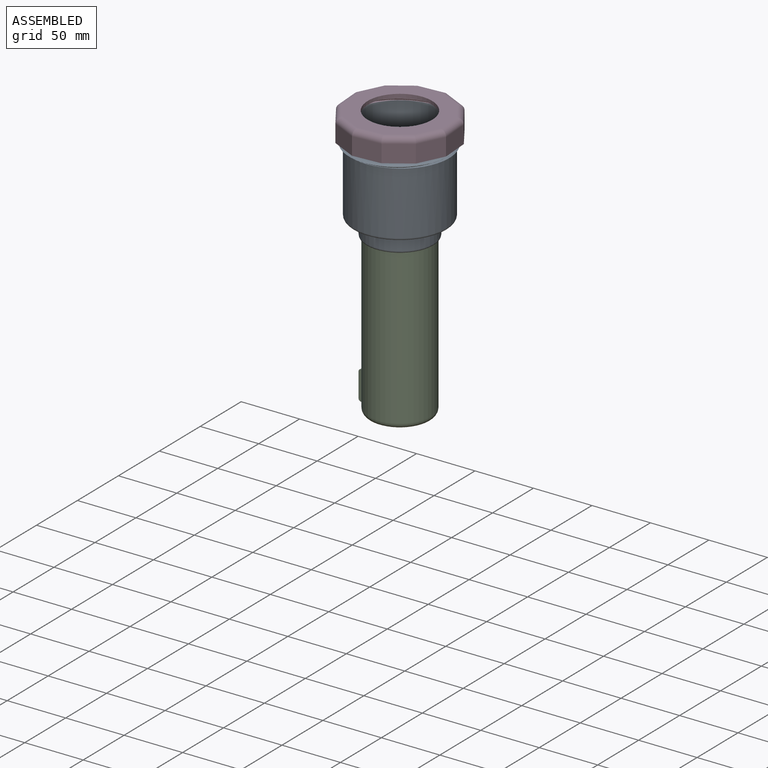
[diagram: assembled view]
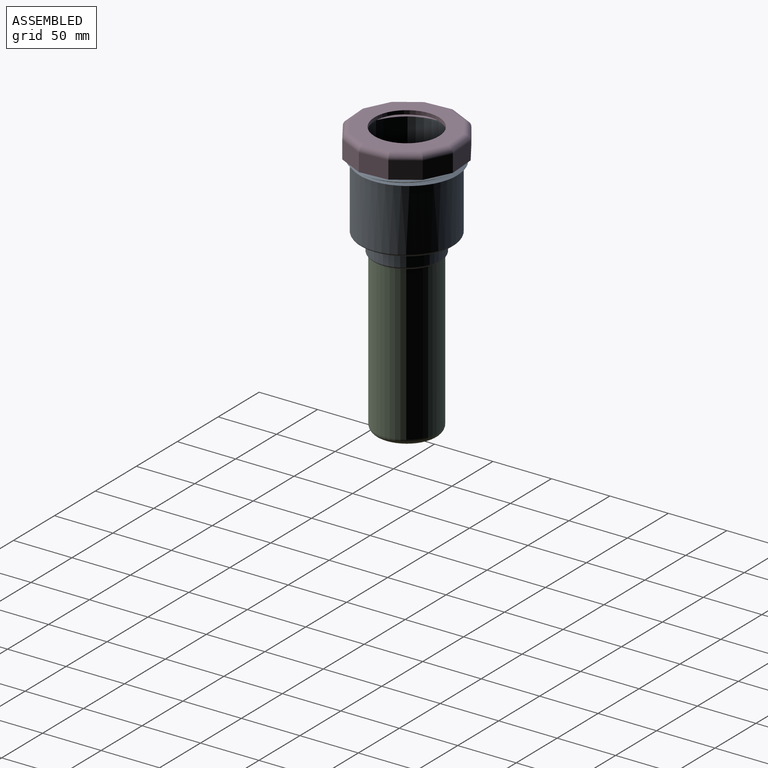
[diagram: assembled view, second angle]
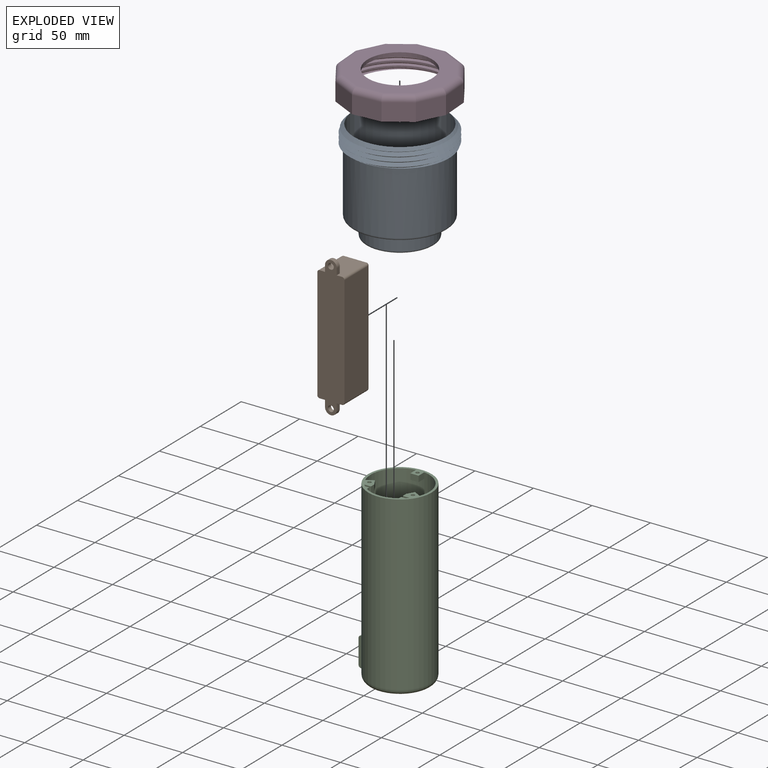
[diagram: exploded view]
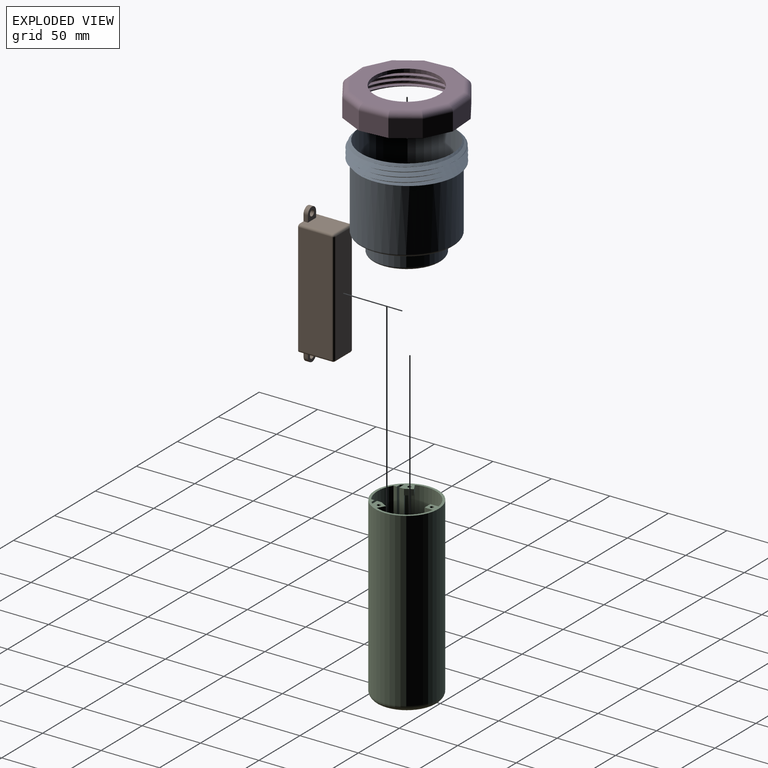
[diagram: exploded view, second angle]
ASSEMBLY  parts=5 mates=4
PART A: 22 faces, bbox 86.6x99.3x88.7 mm
  f0: plane 78x78mm, normal (0,0,1), area 4752.6mm2, adj f4,f8,f19,f20,f21
  f1: plane 54.1x54.1mm, normal (0,0,-1), area 2272.9mm2, adj f4,f6,f19,f20,f21
  f2: cylinder r=40mm len=80mm, axis (0,0,1), area 13525.1mm2, adj f3,f10,f12,f14,f18
  f3: cylinder r=40mm len=36.63mm, axis (0,0,1), area 16.9mm2, adj f2,f10,f15
  f4: cylinder r=1mm len=3mm, axis (0,0,1), area 18.8mm2, adj f0,f1
  f5: plane 76x76mm, normal (0,0,-1), area 1517.4mm2, adj f16,f18
  f6: cylinder r=27.05mm len=54.1mm, axis (0,0,1), area 2549.4mm2, adj f1,f17
  f7: cylinder r=29mm len=58mm, axis (0,0,1), area 2004.4mm2, adj f16,f17
  f8: cylinder r=39mm len=78mm, axis (0,0,-1), area 16908.1mm2, adj f0,f11
  f9: cylinder r=43mm len=86mm, axis (0,0,1), area 76.3mm2, adj f10,f11,f13,f14,f15
  f10: plane 84.38x80.81mm, normal (0,0,-1), area 402mm2, adj f2,f3,f9,f13,f14,f15
  f11: cone r=38mm half-angle=45deg, axis (0,0,-1), area 828.9mm2, adj f8,f9,f14,f15
  f12: plane 0.49x0.42mm, normal (0,1,0), area 0.1mm2, adj f2,f14,f15
  f13: plane 1.73x1mm, normal (0,1,0), area 0.9mm2, adj f9,f10,f15
  f14: bspline ~99.3x86mm, area 3544mm2, adj f2,f9,f10,f11,f12,f15
  f15: bspline ~99.3x86mm, area 3465mm2, adj f3,f9,f10,f11,f12,f13,f14
  f16: torus R=31mm, axis (0,0,1), area 586.8mm2, adj f5,f7
  f17: torus R=27mm, axis (0,0,-1), area 549.6mm2, adj f6,f7
  f18: torus R=38mm, axis (0,0,1), area 775.2mm2, adj f2,f5
  f19: cylinder r=1.55mm len=3.1mm, axis (0,0,-1), area 29.2mm2, adj f0,f1
  f20: cylinder r=1.55mm len=3.1mm, axis (0,0,-1), area 29.2mm2, adj f0,f1
  f21: cylinder r=1.55mm len=3.1mm, axis (0,0,-1), area 29.2mm2, adj f0,f1
PART B: 28 faces, bbox 23.2x120x30.8 mm
  f0: plane 10.5x10mm, normal (0,0,1), area 74.6mm2, adj f2,f3,f4,f5,f10
  f1: plane 95x28.75mm, normal (1,0,0), area 2731.2mm2, adj f14,f18,f23,f24
  f2: plane 5.5x3.75mm, normal (1,0,0), area 20.6mm2, adj f0,f3,f5,f14
  f3: cylinder r=5mm len=10mm, axis (0,0,-1), area 58.9mm2, adj f0,f2,f4,f14
  f4: plane 5.5x3.75mm, normal (-1,0,0), area 20.6mm2, adj f0,f3,f5,f14
  f5: plane 28.75x19.2mm, normal (0,1,0), area 514.5mm2, adj f0,f2,f4,f14,f16,f17,f18
  f6: plane 95x28.75mm, normal (-1,0,0), area 2731.2mm2, adj f14,f16,f21,f22
  f7: plane 5.5x3.75mm, normal (-1,0,0), area 20.6mm2, adj f8,f11,f13,f14
  f8: cylinder r=5mm len=10mm, axis (0,0,-1), area 58.9mm2, adj f7,f9,f13,f14
  f9: plane 5.5x3.75mm, normal (1,0,0), area 20.6mm2, adj f8,f11,f13,f14
  f10: cylinder r=2.5mm len=5mm, axis (0,0,-1), area 58.9mm2, adj f0,f14
  f11: plane 28.75x19.2mm, normal (0,-1,0), area 514.5mm2, adj f7,f9,f13,f14,f21,f24,f27
  f12: cylinder r=2.5mm len=5mm, axis (0,0,-1), area 58.9mm2, adj f13,f14
  f13: plane 10.5x10mm, normal (0,0,1), area 74.6mm2, adj f7,f8,f9,f11,f12
  f14: plane 120x23.2mm, normal (0,0,-1), area 2442.6mm2, adj f1,f2,f3,f4,f5,f6,f7,f8
  f15: plane 95x19.2mm, normal (0,0,1), area 1824mm2, adj f17,f22,f23,f27
  f16: cylinder r=2mm len=28.75mm, axis (0,0,-1), area 90.3mm2, adj f5,f6,f14,f19
  f17: cylinder r=2mm len=19.2mm, axis (1,0,0), area 60.3mm2, adj f5,f15,f19,f20
  f18: cylinder r=2mm len=28.75mm, axis (0,0,-1), area 90.3mm2, adj f1,f5,f14,f20
  f19: sphere r=2mm, area 6.3mm2, adj f16,f17,f22
  f20: sphere r=2mm, area 6.3mm2, adj f17,f18,f23
  f21: cylinder r=2mm len=28.75mm, axis (0,0,-1), area 90.3mm2, adj f6,f11,f14,f25
  f22: cylinder r=2mm len=95mm, axis (0,1,0), area 298.5mm2, adj f6,f15,f19,f25
  f23: cylinder r=2mm len=95mm, axis (0,-1,0), area 298.5mm2, adj f1,f15,f20,f26
  f24: cylinder r=2mm len=28.75mm, axis (0,0,-1), area 90.3mm2, adj f1,f11,f14,f26
  f25: sphere r=2mm, area 6.3mm2, adj f21,f22,f27
  f26: sphere r=2mm, area 6.3mm2, adj f23,f24,f27
  f27: cylinder r=2mm len=19.2mm, axis (1,0,0), area 60.3mm2, adj f11,f15,f25,f26
PART C: 76 faces, bbox 59.2x59.2x152.7 mm
  f0: cylinder r=27mm len=147mm, axis (0,0,-1), area 24316.2mm2, adj f10,f55,f57,f58,f59,f60,f61,f63
  f1: cylinder r=25mm len=123mm, axis (0,0,-1), area 353.2mm2, adj f10,f41,f42,f52
  f2: cylinder r=25mm len=123mm, axis (0,0,-1), area 353.2mm2, adj f10,f45,f47,f51
  f3: cylinder r=1.55mm len=3.1mm, axis (0,0,1), area 24.3mm2, adj f10,f32
  f4: plane 7.25x7mm, normal (0,0,-1), area 26.8mm2, adj f9,f11,f12,f13,f33,f34,f35,f36
  f5: cylinder r=1.55mm len=3.1mm, axis (0,0,1), area 24.3mm2, adj f10,f25
  f6: plane 9.56x9.56mm, normal (0,0,-1), area 26.8mm2, adj f9,f14,f15,f26,f27,f28,f29,f30
  f7: cylinder r=1.55mm len=3.1mm, axis (0,0,1), area 24.3mm2, adj f10,f18
  f8: plane 9.56x9.56mm, normal (0,0,-1), area 26.8mm2, adj f9,f16,f17,f19,f20,f21,f22,f23
  f9: cylinder r=25mm len=150mm, axis (0,0,-1), area 21193.6mm2, adj f4,f6,f8,f10,f11,f12,f14,f16
  f10: plane 54x54mm, normal (0,0,1), area 493.4mm2, adj f0,f1,f2,f3,f5,f7,f9,f11
  f11: plane 7x5mm, normal (1,0,0), area 35mm2, adj f4,f9,f10,f13
  f12: plane 7x5mm, normal (-1,0,0), area 35mm2, adj f4,f9,f10,f13
  f13: plane 7x5mm, normal (0,-1,0), area 35mm2, adj f4,f10,f11,f12
  f14: plane 6.06x5mm, normal (-0.5,0.87,0), area 35mm2, adj f6,f9,f10,f15
  f15: plane 6.06x5mm, normal (0.87,0.5,0), area 35mm2, adj f6,f10,f14,f46
  f16: plane 6.06x5mm, normal (0.5,0.87,0), area 35mm2, adj f8,f9,f10,f17
  f17: plane 6.06x5mm, normal (-0.87,0.5,0), area 35mm2, adj f8,f10,f16,f40
  f18: plane 6x5.29mm, normal (0,0,-1), area 15.8mm2, adj f7,f19,f20,f21,f22,f23,f24
  f19: plane 2.65x2.5mm, normal (0.88,-0.47,0), area 7.5mm2, adj f8,f18,f20,f24
  f20: plane 3x2.5mm, normal (0.03,-1,0), area 7.5mm2, adj f8,f18,f19,f21
  f21: plane 2.55x2.5mm, normal (-0.85,-0.53,0), area 7.5mm2, adj f8,f18,f20,f22
  f22: plane 2.65x2.5mm, normal (-0.88,0.47,0), area 7.5mm2, adj f8,f18,f21,f23
  f23: plane 3x2.5mm, normal (-0.03,1,0), area 7.5mm2, adj f8,f18,f22,f24
  f24: plane 2.55x2.5mm, normal (0.85,0.53,0), area 7.5mm2, adj f8,f18,f19,f23
  f25: plane 6x5.29mm, normal (0,0,-1), area 15.8mm2, adj f5,f26,f27,f28,f29,f30,f31
  f26: plane 2.55x2.5mm, normal (0.85,0.53,0), area 7.5mm2, adj f6,f25,f27,f31
  f27: plane 2.65x2.5mm, normal (0.88,-0.47,0), area 7.5mm2, adj f6,f25,f26,f28
  f28: plane 3x2.5mm, normal (0.03,-1,0), area 7.5mm2, adj f6,f25,f27,f29
  f29: plane 2.55x2.5mm, normal (-0.85,-0.53,0), area 7.5mm2, adj f6,f25,f28,f30
  f30: plane 2.65x2.5mm, normal (-0.88,0.47,0), area 7.5mm2, adj f6,f25,f29,f31
  f31: plane 3x2.5mm, normal (-0.03,1,0), area 7.5mm2, adj f6,f25,f26,f30
  f32: plane 6x5.29mm, normal (0,0,-1), area 15.8mm2, adj f3,f33,f34,f35,f36,f37,f38
  f33: plane 3x2.5mm, normal (0.03,-1,0), area 7.5mm2, adj f4,f32,f34,f38
  f34: plane 2.55x2.5mm, normal (-0.85,-0.53,0), area 7.5mm2, adj f4,f32,f33,f35
  f35: plane 2.65x2.5mm, normal (-0.88,0.47,0), area 7.5mm2, adj f4,f32,f34,f36
  f36: plane 3x2.5mm, normal (-0.03,1,0), area 7.5mm2, adj f4,f32,f35,f37
  f37: plane 2.55x2.5mm, normal (0.85,0.53,0), area 7.5mm2, adj f4,f32,f36,f38
  f38: plane 2.65x2.5mm, normal (0.88,-0.47,0), area 7.5mm2, adj f4,f32,f33,f37
  f39: plane 120x6.06mm, normal (0.5,0.87,0), area 840mm2, adj f8,f9,f40,f54
  f40: plane 125x4.05mm, normal (-1,0,0), area 506.8mm2, adj f10,f17,f39,f41,f53,f54
  f41: plane 123x5.62mm, normal (0,-1,0), area 690.7mm2, adj f1,f10,f40,f52
  f42: plane 123x3.64mm, normal (0,1,0), area 447.9mm2, adj f1,f10,f43,f52
  f43: plane 125x2.89mm, normal (-1,0,0), area 360.9mm2, adj f9,f10,f42,f53,f54
  f44: plane 120x6.06mm, normal (-0.5,0.87,0), area 840mm2, adj f6,f9,f46,f50
  f45: plane 123x5.62mm, normal (0,-1,0), area 690.7mm2, adj f2,f10,f46,f51
  f46: plane 125x4.05mm, normal (1,0,0), area 506.8mm2, adj f10,f15,f44,f45,f49,f50
  f47: plane 123x3.64mm, normal (0,1,0), area 447.9mm2, adj f2,f10,f48,f51
  f48: plane 125x2.89mm, normal (1,0,0), area 360.9mm2, adj f9,f10,f47,f49,f50
  f49: plane 2.1x2mm, normal (1,-0.01,0), area 4.2mm2, adj f46,f48,f50,f51
  f50: plane 9.04x6.06mm, normal (0,0,-1), area 29.2mm2, adj f9,f44,f46,f48,f49
  f51: plane 5.62x2.1mm, normal (0,0,1), area 9.8mm2, adj f2,f45,f47,f49
  f52: plane 5.62x2.1mm, normal (0,0,1), area 9.8mm2, adj f1,f41,f42,f53
  f53: plane 2.1x2mm, normal (-1,-0.01,0), area 4.2mm2, adj f40,f43,f52,f54
  f54: plane 9.04x6.06mm, normal (0,0,-1), area 29.2mm2, adj f9,f39,f40,f43,f53
  f55: plane 25x2.81mm, normal (0,-1,0), area 68.6mm2, adj f0,f56,f57,f58,f68,f70
  f56: plane 25.75x24.75mm, normal (-1,0,0), area 334.4mm2, adj f55,f59,f62,f63,f64,f65,f66,f67
  f57: plane 1.8x0.81mm, normal (0,0,1), area 0.7mm2, adj f0,f55,f70
  f58: plane 1.8x0.81mm, normal (0,0,-1), area 0.7mm2, adj f0,f55,f68
  f59: plane 25x2.81mm, normal (0,1,0), area 68.6mm2, adj f0,f56,f60,f61,f64,f66
  f60: plane 1.8x0.81mm, normal (0,0,1), area 0.7mm2, adj f0,f59,f66
  f61: plane 1.8x0.81mm, normal (0,0,-1), area 0.7mm2, adj f0,f59,f64
  f62: cylinder r=8mm len=16mm, axis (-1,0,0), area 133.3mm2, adj f9,f56
  f63: bspline ~10.2x2mm, area 10.2mm2, adj f0,f56,f64
  f64: cylinder r=2mm len=2mm, axis (0,-1,0), area 5.7mm2, adj f56,f59,f61,f63
  f65: bspline ~11.07x2.39mm, area 10.2mm2, adj f0,f56,f66
  f66: cylinder r=2mm len=2mm, axis (0,1,0), area 5.7mm2, adj f56,f59,f60,f65
  f67: bspline ~11.07x2.39mm, area 10.2mm2, adj f0,f56,f68
  f68: cylinder r=2mm len=2mm, axis (0,1,0), area 5.7mm2, adj f55,f56,f58,f67
  f69: bspline ~11.07x2.35mm, area 10.2mm2, adj f0,f56,f70
  f70: cylinder r=2mm len=2mm, axis (0,-1,0), area 5.7mm2, adj f55,f56,f57,f69
  f71: plane 50x50mm, normal (0,0,1), area 1949.4mm2, adj f9,f74,f75
  f72: plane 44x44mm, normal (0,0,-1), area 1506.4mm2, adj f73,f74,f75
  f73: torus R=22mm, axis (0,0,-1), area 1242.7mm2, adj f0,f72
  f74: cylinder r=1.5mm len=3mm, axis (0,0,-1), area 18.8mm2, adj f71,f72
  f75: cylinder r=1.5mm len=3mm, axis (0,0,-1), area 18.8mm2, adj f71,f72
PART D: 31 faces, bbox 92.7x100.8x23.4 mm
  f0: cylinder r=41.05mm len=82.1mm, axis (0,0,-1), area 1845.2mm2, adj f13,f15,f16,f18
  f1: plane 24.08x15mm, normal (0.06,1,0), area 361.7mm2, adj f2,f12,f13,f28
  f2: plane 21.54x15mm, normal (-0.45,0.89,0), area 361.7mm2, adj f1,f3,f13,f26
  f3: plane 20.16x15mm, normal (-0.84,0.55,0), area 361.7mm2, adj f2,f4,f13,f24
  f4: plane 24.08x15mm, normal (-1,0.06,0), area 361.7mm2, adj f3,f5,f13,f22
  f5: plane 21.54x15mm, normal (-0.89,-0.45,0), area 361.7mm2, adj f4,f6,f13,f20
  f6: plane 20.16x15mm, normal (-0.55,-0.84,0), area 361.7mm2, adj f5,f7,f13,f19
  f7: plane 24.08x15mm, normal (-0.06,-1,0), area 361.7mm2, adj f6,f8,f13,f21
  f8: plane 21.54x15mm, normal (0.45,-0.89,0), area 361.7mm2, adj f7,f9,f13,f23
  f9: plane 20.16x15mm, normal (0.84,-0.55,0), area 361.7mm2, adj f8,f10,f13,f25
  f10: plane 24.08x15mm, normal (1,-0.06,0), area 361.7mm2, adj f9,f11,f13,f27
  f11: plane 21.54x15mm, normal (0.89,0.45,0), area 361.7mm2, adj f10,f12,f13,f29
  f12: plane 20.16x15mm, normal (0.55,0.84,0), area 361.7mm2, adj f1,f11,f13,f30
  f13: plane 92.65x92.65mm, normal (0,0,1), area 1064.7mm2, adj f0,f1,f2,f3,f4,f5,f6,f7
  f14: plane 81.1x81.1mm, normal (0,0,-1), area 2768.8mm2, adj f17,f19,f20,f21,f22,f23,f24,f25
  f15: bspline ~99.42x86.1mm, area 2493.4mm2, adj f0,f13,f16,f18
  f16: bspline ~99.42x86.1mm, area 2712.2mm2, adj f0,f13,f15,f18
  f17: cylinder r=27.5mm len=55mm, axis (0,0,-1), area 518.4mm2, adj f14,f18
  f18: plane 85.46x84.01mm, normal (0,0,1), area 3070.2mm2, adj f0,f15,f16,f17
  f19: cylinder r=5mm len=22.9mm, axis (0.84,-0.55,0), area 178.9mm2, adj f6,f14,f20,f21
  f20: cylinder r=5mm len=23.79mm, axis (0.45,-0.89,0), area 178.9mm2, adj f5,f14,f19,f22
  f21: cylinder r=5mm len=24.36mm, axis (1,-0.06,0), area 178.9mm2, adj f7,f14,f19,f23
  f22: cylinder r=5mm len=24.36mm, axis (-0.06,-1,0), area 178.9mm2, adj f4,f14,f20,f24
  f23: cylinder r=5mm len=23.79mm, axis (0.89,0.45,0), area 178.9mm2, adj f8,f14,f21,f25
  f24: cylinder r=5mm len=22.9mm, axis (-0.55,-0.84,0), area 178.9mm2, adj f3,f14,f22,f26
  f25: cylinder r=5mm len=22.9mm, axis (0.55,0.84,0), area 178.9mm2, adj f9,f14,f23,f27
  f26: cylinder r=5mm len=23.79mm, axis (-0.89,-0.45,0), area 178.9mm2, adj f2,f14,f24,f28
  f27: cylinder r=5mm len=24.36mm, axis (0.06,1,0), area 178.9mm2, adj f10,f14,f25,f29
  f28: cylinder r=5mm len=24.36mm, axis (-1,0.06,0), area 178.9mm2, adj f1,f14,f26,f30
  f29: cylinder r=5mm len=23.79mm, axis (-0.45,0.89,0), area 178.9mm2, adj f11,f14,f27,f30
  f30: cylinder r=5mm len=22.9mm, axis (-0.84,0.55,0), area 178.9mm2, adj f12,f14,f28,f29
PART E: 20 faces, bbox 33x122x1.7 mm
  f0: plane 24x1.7mm, normal (-1,0,0), area 40.8mm2, adj f1,f17,f18,f19
  f1: plane 24x1.7mm, normal (0,1,0), area 40.8mm2, adj f0,f2,f18,f19
  f2: plane 24x1.7mm, normal (1,0,0), area 40.8mm2, adj f1,f17,f18,f19
  f3: plane 116x1.7mm, normal (-1,0,0), area 197.2mm2, adj f4,f13,f18,f19
  f4: cylinder r=3mm len=3mm, axis (0,0,-1), area 8mm2, adj f3,f5,f18,f19
  f5: plane 27x1.7mm, normal (0,-1,0), area 45.9mm2, adj f4,f6,f18,f19
  f6: cylinder r=3mm len=3mm, axis (0,0,-1), area 8mm2, adj f5,f7,f18,f19
  f7: plane 116x1.7mm, normal (1,0,0), area 197.2mm2, adj f6,f8,f18,f19
  f8: cylinder r=3mm len=3mm, axis (0,0,-1), area 8mm2, adj f7,f9,f18,f19
  f9: plane 27x1.7mm, normal (0,1,0), area 45.9mm2, adj f8,f13,f18,f19
  f10: plane 24x1.7mm, normal (-1,0,0), area 40.8mm2, adj f11,f16,f18,f19
  f11: plane 24x1.7mm, normal (0,1,0), area 40.8mm2, adj f10,f12,f18,f19
  f12: plane 24x1.7mm, normal (1,0,0), area 40.8mm2, adj f11,f16,f18,f19
  f13: cylinder r=3mm len=3mm, axis (0,0,-1), area 8mm2, adj f3,f9,f18,f19
  f14: cylinder r=1.65mm len=3.3mm, axis (0,0,-1), area 17.6mm2, adj f18,f19
  f15: cylinder r=1.65mm len=3.3mm, axis (0,0,-1), area 17.6mm2, adj f18,f19
  f16: plane 24x1.7mm, normal (0,-1,0), area 40.8mm2, adj f10,f12,f18,f19
  f17: plane 24x1.7mm, normal (0,-1,0), area 40.8mm2, adj f0,f2,f18,f19
  f18: plane 122x33mm, normal (0,0,1), area 2849.2mm2, adj f0,f1,f2,f3,f4,f5,f6,f7
  f19: plane 122x33mm, normal (0,0,-1), area 2849.2mm2, adj f0,f1,f2,f3,f4,f5,f6,f7
PLACE A rot(axis=(0,0,1),180deg) t=(10.66,28.89,62.58)mm
PLACE B rot(axis=(-1,0,0),90deg) t=(10.88,11.13,73.58)mm
PLACE C t=(10.66,28.89,59.58)mm
PLACE D rot(axis=(0.71,-0.7,0),180deg) t=(10.66,28.89,216.85)mm
PLACE E rot(axis=(0,-0.71,0.71),180deg) t=(10.88,12.83,73.58)mm
MATE cylindrical A.f8 <-> D.f17  axis (0,0,-1) through (10.66,28.89,206.58)mm
MATE fastened B.f3 <-> E.f14  axis (0,-1,0) through (10.88,11.13,18.58)mm
MATE fastened E.f5 <-> C.f10  axis (0,0,1) through (-2.62,12.83,134.58)mm
MATE fastened A.f21 <-> C.f3  axis (0,0,-1) through (10.66,50.39,134.58)mm
